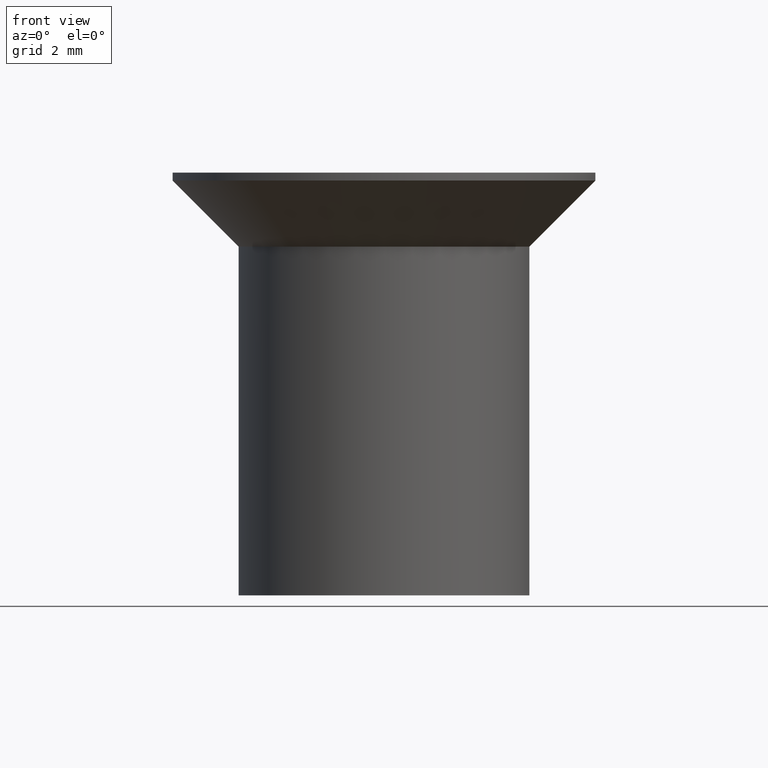
[diagram: clean part render]
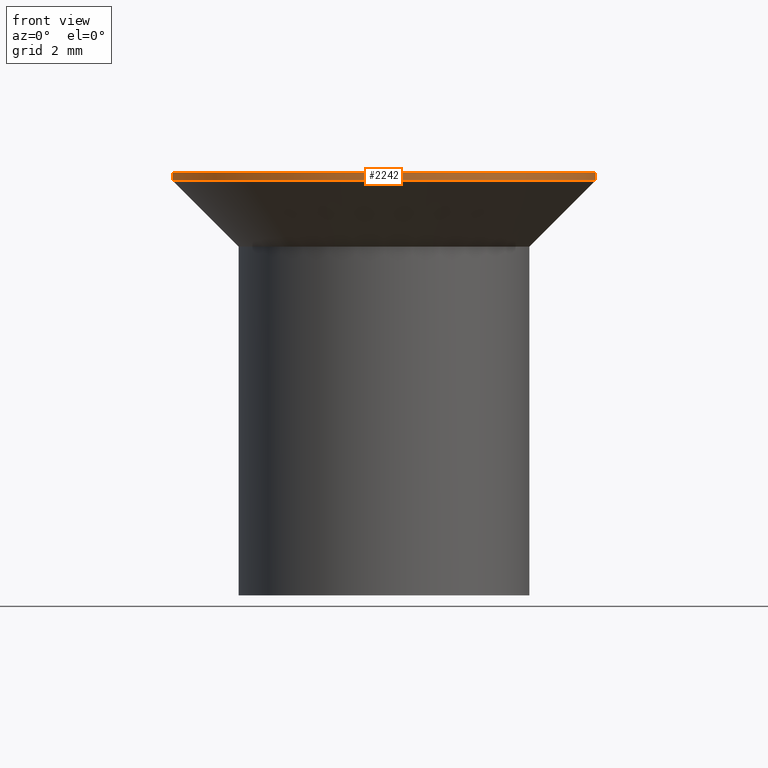
[diagram: same view with one face highlighted and labeled with its STEP entity id]
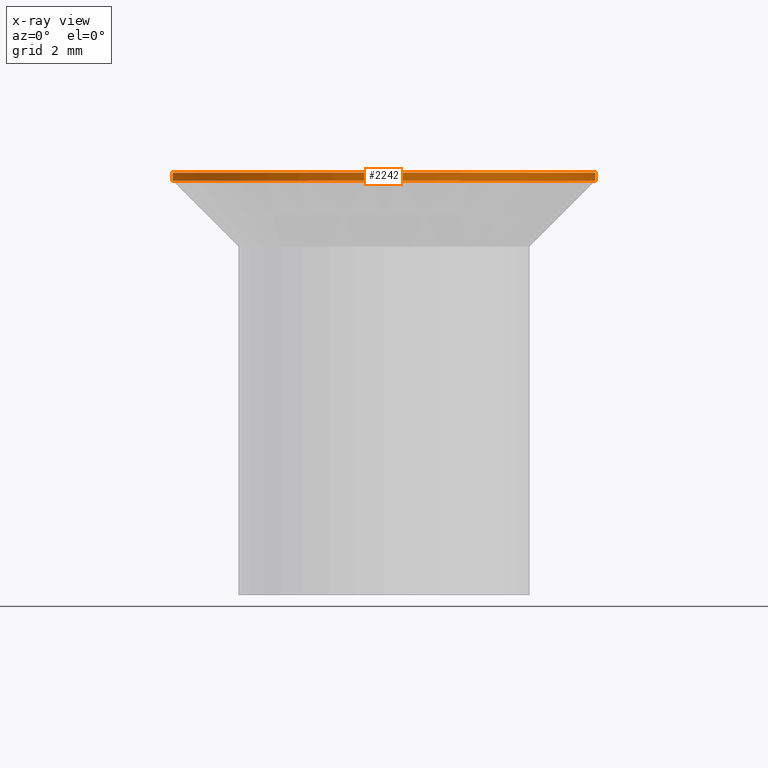
[diagram: x-ray of the same camera — body ghosted, the highlighted face saturated]
A machine part, front view. The second image highlights one B-rep face of the part: STEP entity #2242.
The next image is the same camera in x-ray: the body ghosted, the highlighted face saturated — about 0% of this face is hidden behind the body in this view.
In plain terms, the highlighted cylindrical surface (partial cylindrical patch) has radius 8 mm, axis along (-0, -0, -1).
Its self-contained STEP definition (entity closure, byte-faithful):
#447 = CIRCLE ( 'NONE', #2455, 8.000000000000000000 ) ;
#907 = DIRECTION ( 'NONE',  ( -1.000000000000000000, 0.0000000000000000000, 0.0000000000000000000 ) ) ;
#958 = DIRECTION ( 'NONE',  ( -0.0000000000000000000, -0.0000000000000000000, -1.000000000000000000 ) ) ;
#1032 = CARTESIAN_POINT ( 'NONE',  ( -8.000000000000000000, -1.898202538678397600E-015, 8.000000000000000000 ) ) ;
#1050 = CYLINDRICAL_SURFACE ( 'NONE', #4518, 8.000000000000000000 ) ;
#1111 = CARTESIAN_POINT ( 'NONE',  ( 0.0000000000000000000, -1.898202538678397600E-015, 8.000000000000000000 ) ) ;
#1228 = VERTEX_POINT ( 'NONE', #1032 ) ;
#1296 = CARTESIAN_POINT ( 'NONE',  ( 0.0000000000000000000, -1.898202538678397600E-015, 7.699999999999991300 ) ) ;
#2165 = CARTESIAN_POINT ( 'NONE',  ( 8.000000000000000000, -9.184850993605149900E-016, -8.000000000000000000 ) ) ;
#2242 = ADVANCED_FACE ( 'NONE', ( #4453 ), #1050, .T. ) ;
#2254 = VERTEX_POINT ( 'NONE', #13511 ) ;
#2344 = EDGE_CURVE ( 'NONE', #2254, #2593, #4254, .T. ) ;
#2455 = AXIS2_PLACEMENT_3D ( 'NONE', #1111, #13816, #6162 ) ;
#2593 = VERTEX_POINT ( 'NONE', #4472 ) ;
#2655 = EDGE_CURVE ( 'NONE', #16413, #1228, #447, .T. ) ;
#3284 = ORIENTED_EDGE ( 'NONE', *, *, #2655, .T. ) ;
#3533 = ORIENTED_EDGE ( 'NONE', *, *, #2344, .F. ) ;
#3684 = EDGE_LOOP ( 'NONE', ( #10995, #3284, #9277, #3533 ) ) ;
#4254 = CIRCLE ( 'NONE', #5373, 8.000000000000000000 ) ;
#4453 = FACE_OUTER_BOUND ( 'NONE', #3684, .T. ) ;
#4472 = CARTESIAN_POINT ( 'NONE',  ( -8.000000000000000000, -1.898202538678397600E-015, 7.699999999999991300 ) ) ;
#4518 = AXIS2_PLACEMENT_3D ( 'NONE', #14837, #7342, #907 ) ;
#4615 = EDGE_CURVE ( 'NONE', #16413, #2254, #10180, .T. ) ;
#4720 = CARTESIAN_POINT ( 'NONE',  ( 8.000000000000000000, -9.184850993605149900E-016, 8.000000000000000000 ) ) ;
#5014 = VECTOR ( 'NONE', #958, 1000.000000000000000 ) ;
#5239 = CARTESIAN_POINT ( 'NONE',  ( -8.000000000000000000, -1.898202538678397600E-015, -8.000000000000000000 ) ) ;
#5373 = AXIS2_PLACEMENT_3D ( 'NONE', #1296, #10034, #8858 ) ;
#6162 = DIRECTION ( 'NONE',  ( -1.000000000000000000, 0.0000000000000000000, 0.0000000000000000000 ) ) ;
#6712 = EDGE_CURVE ( 'NONE', #1228, #2593, #7491, .T. ) ;
#7342 = DIRECTION ( 'NONE',  ( -0.0000000000000000000, -0.0000000000000000000, -1.000000000000000000 ) ) ;
#7491 = LINE ( 'NONE', #5239, #8299 ) ;
#8299 = VECTOR ( 'NONE', #15376, 1000.000000000000000 ) ;
#8858 = DIRECTION ( 'NONE',  ( -1.000000000000000000, 0.0000000000000000000, 0.0000000000000000000 ) ) ;
#9277 = ORIENTED_EDGE ( 'NONE', *, *, #6712, .T. ) ;
#10034 = DIRECTION ( 'NONE',  ( -0.0000000000000000000, -0.0000000000000000000, -1.000000000000000000 ) ) ;
#10180 = LINE ( 'NONE', #2165, #5014 ) ;
#10995 = ORIENTED_EDGE ( 'NONE', *, *, #4615, .F. ) ;
#13511 = CARTESIAN_POINT ( 'NONE',  ( 8.000000000000000000, -9.184850993605149900E-016, 7.699999999999991300 ) ) ;
#13816 = DIRECTION ( 'NONE',  ( -0.0000000000000000000, -0.0000000000000000000, -1.000000000000000000 ) ) ;
#14837 = CARTESIAN_POINT ( 'NONE',  ( 0.0000000000000000000, -1.898202538678397600E-015, -8.000000000000000000 ) ) ;
#15376 = DIRECTION ( 'NONE',  ( -0.0000000000000000000, -0.0000000000000000000, -1.000000000000000000 ) ) ;
#16413 = VERTEX_POINT ( 'NONE', #4720 ) ;